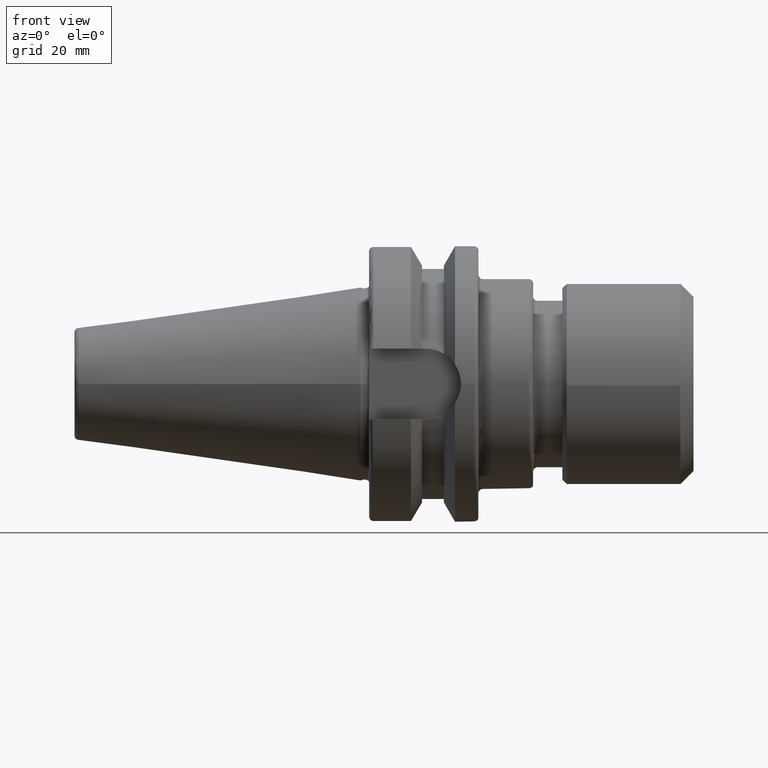
[diagram: clean part render]
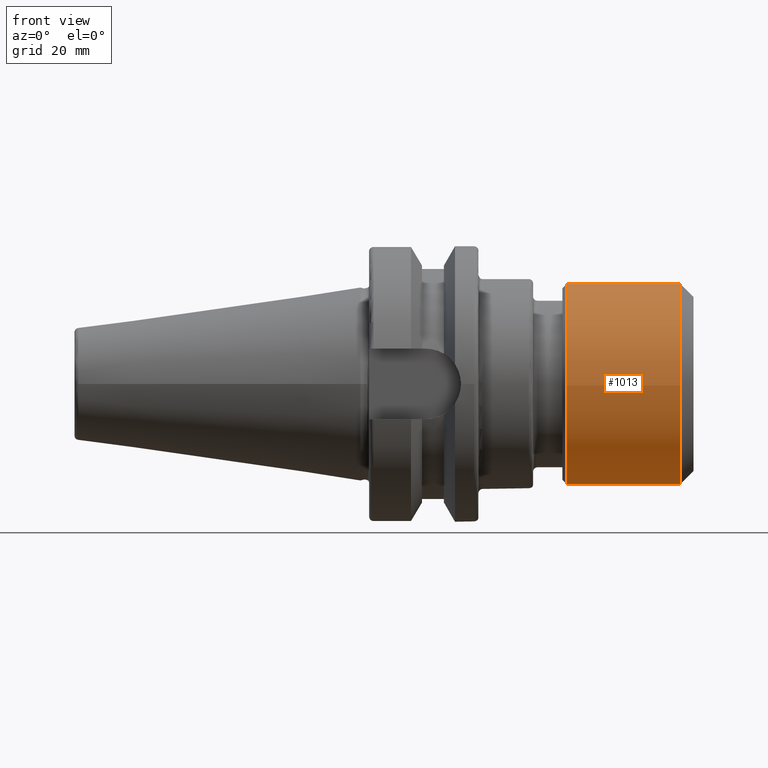
[diagram: same view with one face highlighted and labeled with its STEP entity id]
A machine part, front view. The second image highlights one B-rep face of the part: STEP entity #1013.
In plain terms, the highlighted cylindrical surface (bore or boss wall) has radius 23 mm, axis along (1, 0, 0).
Its self-contained STEP definition (entity closure, byte-faithful):
#148=LINE('',#1951,#199);
#199=VECTOR('',#1540,23.);
#218=CYLINDRICAL_SURFACE('',#1220,23.);
#276=FACE_OUTER_BOUND('',#346,.T.);
#346=EDGE_LOOP('',(#932,#933,#934,#935,#936,#937));
#420=CIRCLE('',#1218,23.);
#421=CIRCLE('',#1219,23.);
#422=CIRCLE('',#1221,23.);
#423=CIRCLE('',#1222,23.);
#513=VERTEX_POINT('',#1944);
#514=VERTEX_POINT('',#1946);
#515=VERTEX_POINT('',#1950);
#516=VERTEX_POINT('',#1952);
#654=EDGE_CURVE('',#513,#514,#420,.T.);
#655=EDGE_CURVE('',#514,#513,#421,.T.);
#656=EDGE_CURVE('',#514,#515,#148,.T.);
#657=EDGE_CURVE('',#516,#515,#422,.T.);
#658=EDGE_CURVE('',#515,#516,#423,.T.);
#932=ORIENTED_EDGE('',*,*,#654,.F.);
#933=ORIENTED_EDGE('',*,*,#655,.F.);
#934=ORIENTED_EDGE('',*,*,#656,.T.);
#935=ORIENTED_EDGE('',*,*,#657,.F.);
#936=ORIENTED_EDGE('',*,*,#658,.F.);
#937=ORIENTED_EDGE('',*,*,#656,.F.);
#1013=ADVANCED_FACE('',(#276),#218,.T.);
#1218=AXIS2_PLACEMENT_3D('',#1947,#1534,#1535);
#1219=AXIS2_PLACEMENT_3D('',#1948,#1536,#1537);
#1220=AXIS2_PLACEMENT_3D('',#1949,#1538,#1539);
#1221=AXIS2_PLACEMENT_3D('',#1953,#1541,#1542);
#1222=AXIS2_PLACEMENT_3D('',#1954,#1543,#1544);
#1534=DIRECTION('center_axis',(1.,0.,0.));
#1535=DIRECTION('ref_axis',(0.,-1.,0.));
#1536=DIRECTION('center_axis',(1.,0.,0.));
#1537=DIRECTION('ref_axis',(0.,-1.,0.));
#1538=DIRECTION('center_axis',(1.,0.,0.));
#1539=DIRECTION('ref_axis',(0.,1.,0.));
#1540=DIRECTION('',(-1.,0.,0.));
#1541=DIRECTION('center_axis',(-1.,0.,0.));
#1542=DIRECTION('ref_axis',(0.,-1.,0.));
#1543=DIRECTION('center_axis',(-1.,0.,0.));
#1544=DIRECTION('ref_axis',(0.,-1.,0.));
#1944=CARTESIAN_POINT('',(27.,23.,2.81668763803891E-15));
#1946=CARTESIAN_POINT('',(27.,-23.,-2.81668763803891E-15));
#1947=CARTESIAN_POINT('Origin',(27.,0.,0.));
#1948=CARTESIAN_POINT('Origin',(27.,0.,0.));
#1949=CARTESIAN_POINT('Origin',(15.,0.,0.));
#1950=CARTESIAN_POINT('',(1.,-23.,-2.81668763803891E-15));
#1951=CARTESIAN_POINT('',(15.,-23.,-2.81668763803891E-15));
#1952=CARTESIAN_POINT('',(1.,23.,-2.81668763803891E-15));
#1953=CARTESIAN_POINT('Origin',(1.,0.,0.));
#1954=CARTESIAN_POINT('Origin',(1.,0.,0.));